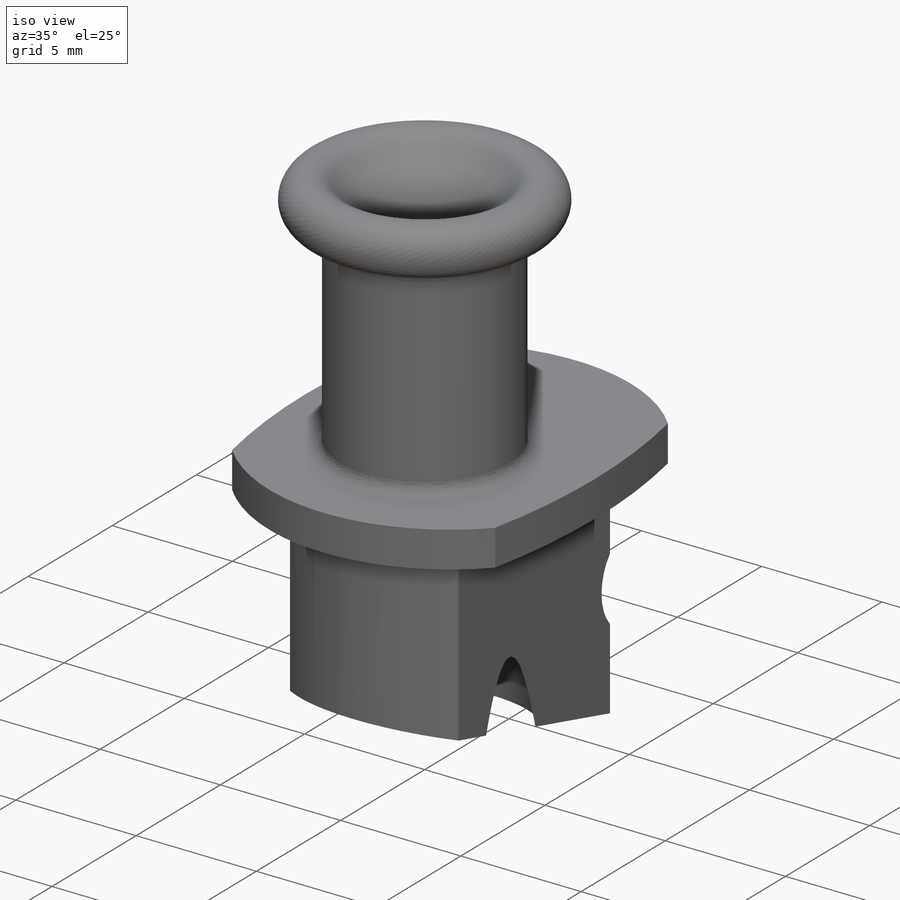
[diagram: iso view]
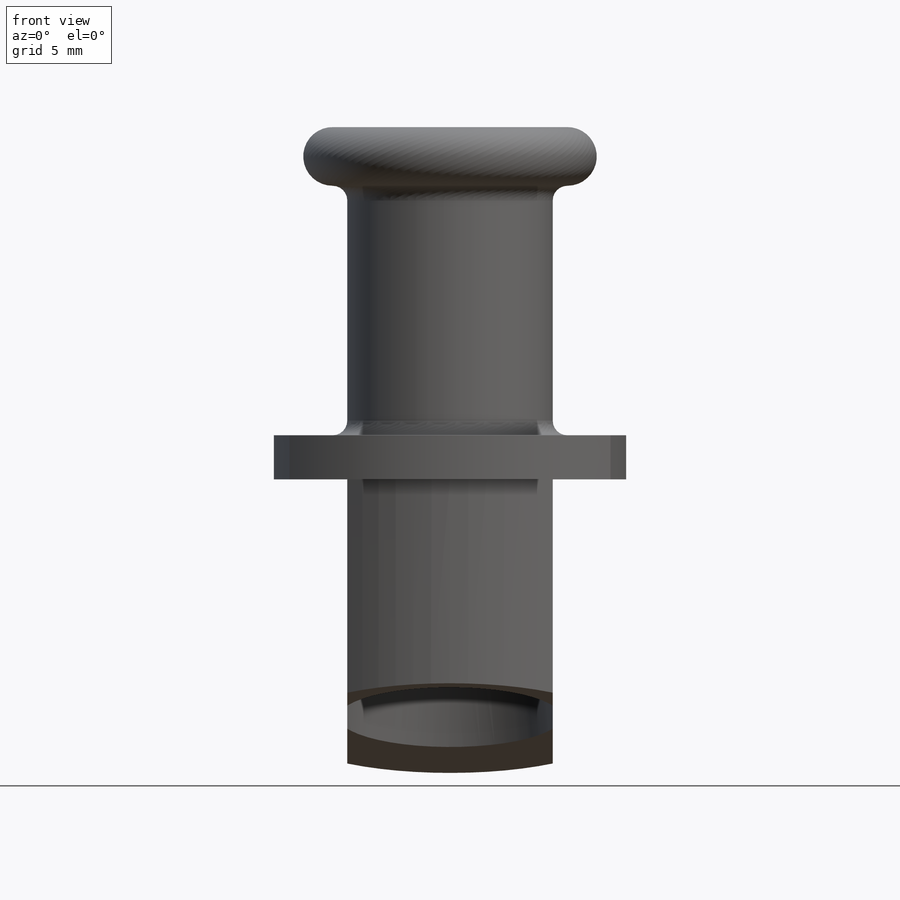
[diagram: front view]
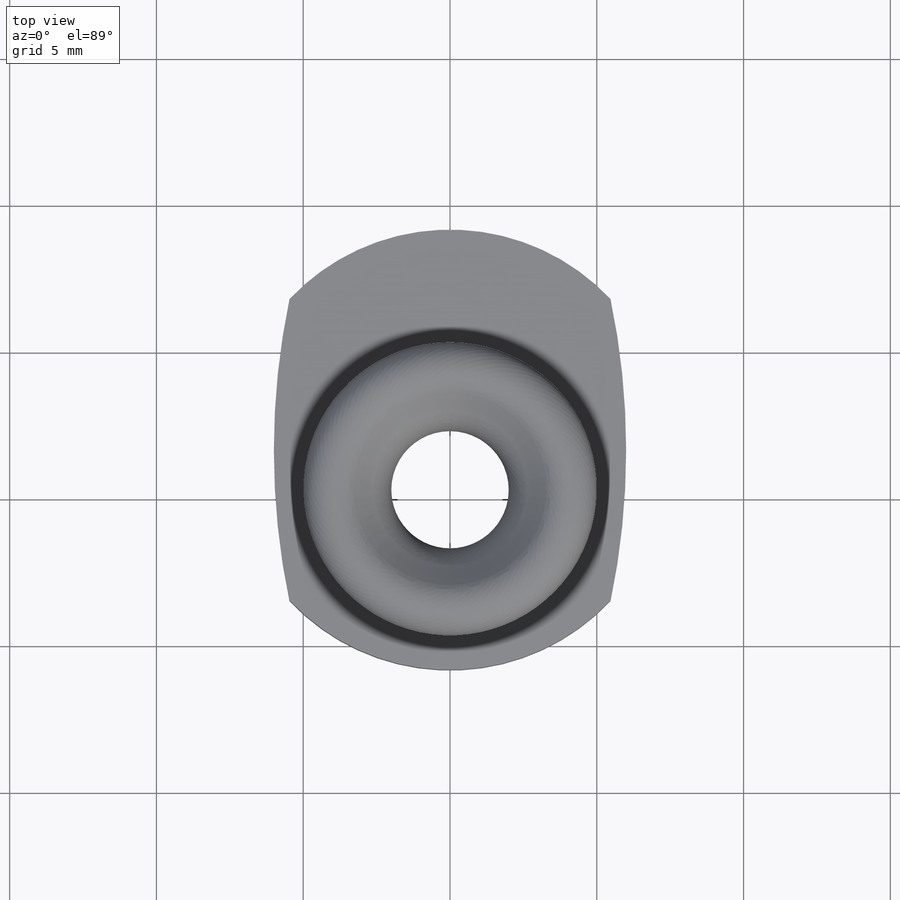
[diagram: top view]
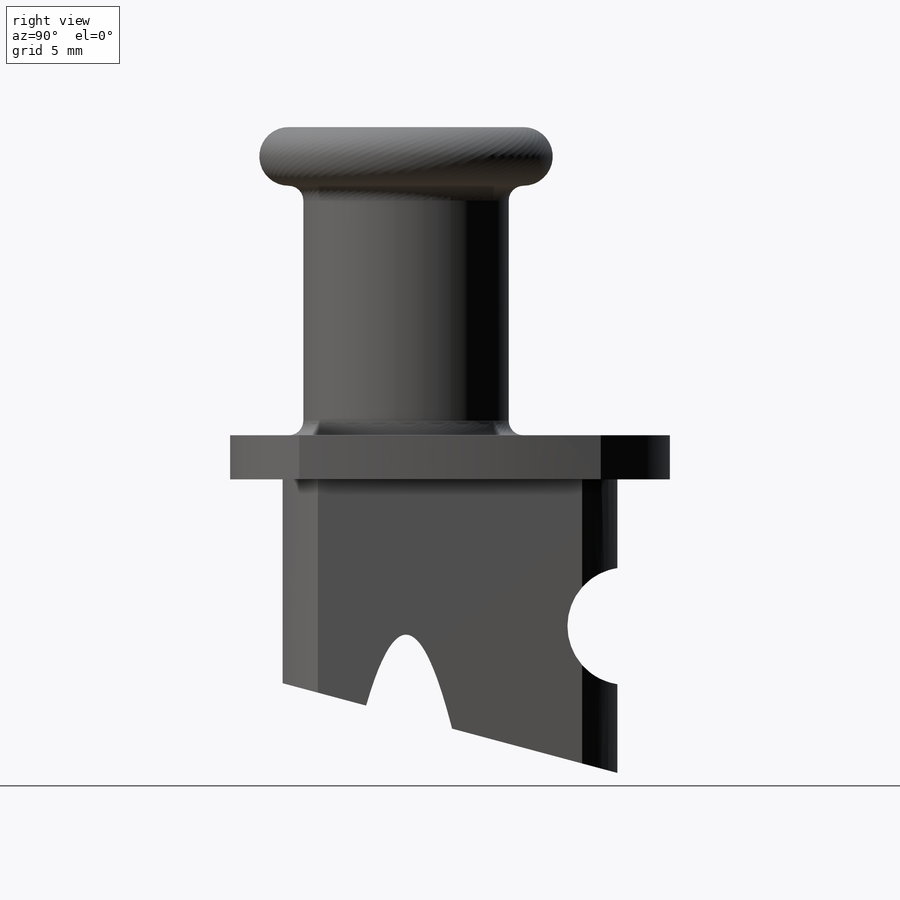
[diagram: right view]
SOLIDWORKS PART (.sldprt)
format: sldprt  version: not decoded by parser v0  size: 287,744 bytes
history: native  units: mm
features: sketch x5, cut_extrude x4, revolve x2, material x1 (+13 scaffold rows collapsed)
feature tree (25):
  scaffold x13  (default folders/planes/origin — collapsed)
  material  "6061 Alloy"
  sketch  "Sketch1"  dims[c1.D3=2.0mm c1.D4=2.0mm c1.D6=0.5mm c1.D10=0.5mm c1.D11=1.0mm c1.D1=4.0mm c1.D2=0.5mm c1.D5=~36.017832mm c2.D5=6.0deg c2.D7=1.5mm c2.D8=10.0mm c2.D9=~38.416009mm c3.D9=45.0deg c3.D12=7.0mm c3.D13=20.0mm c3.D14=12.0mm c3.D15=10.0mm c3.D16=16.0mm]
  revolve  "Revolve1"  Angle=360deg
  sketch  "Sketch2"  dims[D1=15.0mm D3=12.0mm D5=25.0mm D2=38.0mm D4=1.5mm]
  cut_extrude  "Cut-Extrude1"  [1 undecoded]
  sketch  "Sketch3"  dims[D1=7.0mm D2=9.0mm]
  cut_extrude  "Cut-Extrude2"  [1 undecoded]
  revolve  "Axis2"  [1 undecoded]
  sketch  "Sketch4"  dims[c1.D2=4.0mm c1.D1=~11.401754mm c2.D1=15.0deg c2.D3=7.5mm c2.D4=5.0mm]
  cut_extrude  "Cut-Extrude3"  Depth=10mm
  sketch  "Sketch5"  dims[D2=2.5mm D1=5.0mm]
  cut_extrude  "Cut-Extrude4"  [1 undecoded]
decode coverage: 7 of 11 modeling features carry decoded parameters
note: ~ marks probable driven/reference dimensions
note: 4 parameter values undecoded
summary: no parameter record found for 4 features
note: suppression state not decoded; provenance and decode notes live in map.json
